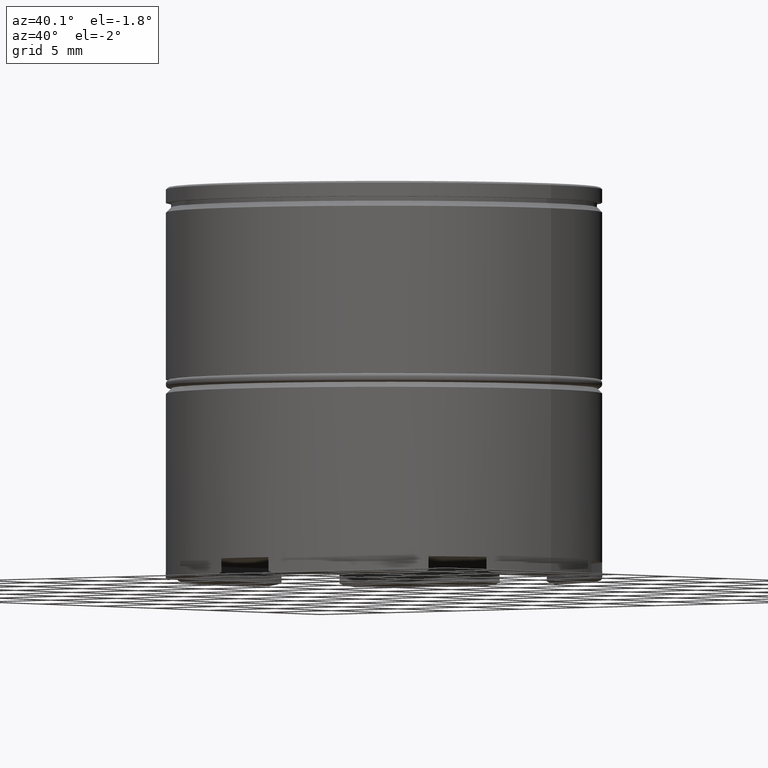
[diagram: clean part render]
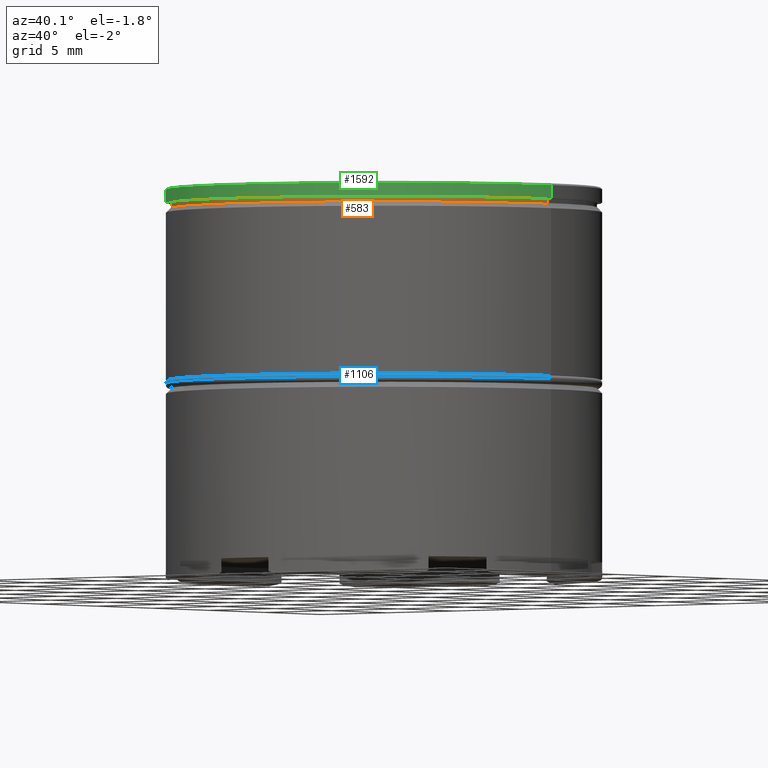
[diagram: same view with three faces highlighted in distinct colors, each labeled with its STEP entity id]
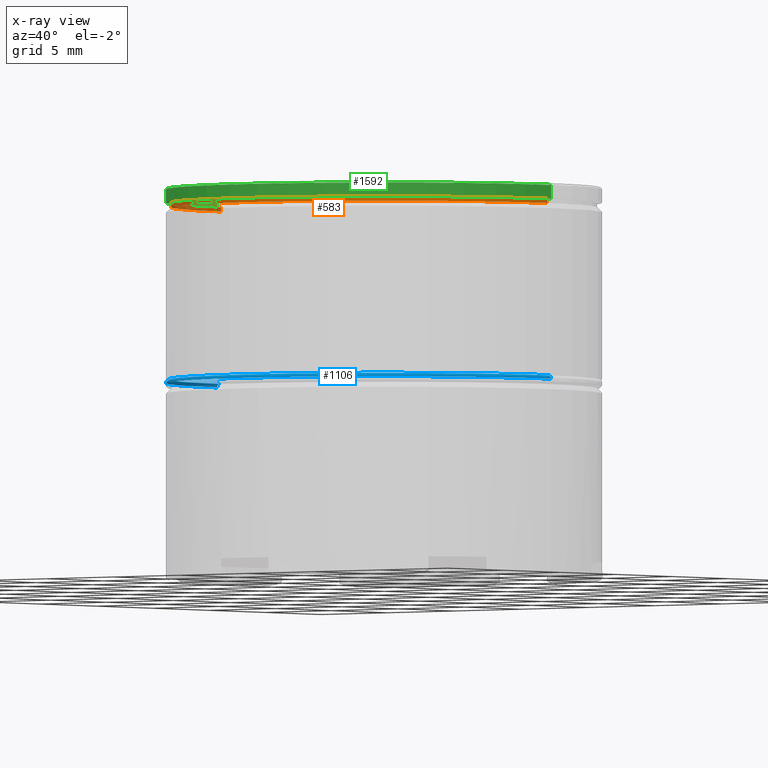
[diagram: x-ray of the same camera — body ghosted, the three highlighted faces saturated]
A machine part, auxiliary view with three faces highlighted in distinct colors.
The next image is the same camera in x-ray (body ghosted, the three faces saturated) — at least one of them is partly hidden behind the body in this view.
Their STEP definitions:

[orange] entity #583 — the highlighted cylindrical surface (partial cylindrical patch) has radius 12.2 mm, axis along (-0, -0, 1).
#79 = CARTESIAN_POINT ( 'NONE',  ( 0.000000000000000000, 0.000000000000000000, -0.8749999999999998890 ) ) ;
#101 = VERTEX_POINT ( 'NONE', #1105 ) ;
#126 = ORIENTED_EDGE ( 'NONE', *, *, #315, .T. ) ;
#315 = EDGE_CURVE ( 'NONE', #1454, #932, #673, .T. ) ;
#329 = AXIS2_PLACEMENT_3D ( 'NONE', #1341, #356, #1199 ) ;
#356 = DIRECTION ( 'NONE',  ( -0.000000000000000000, -0.000000000000000000, 1.000000000000000000 ) ) ;
#382 = CYLINDRICAL_SURFACE ( 'NONE', #768, 12.20000000000000107 ) ;
#389 = DIRECTION ( 'NONE',  ( -0.000000000000000000, -0.000000000000000000, 1.000000000000000000 ) ) ;
#490 = LINE ( 'NONE', #518, #1342 ) ;
#495 = LINE ( 'NONE', #977, #718 ) ;
#518 = CARTESIAN_POINT ( 'NONE',  ( 12.20000000000000107, 0.000000000000000000, 0.000000000000000000 ) ) ;
#560 = DIRECTION ( 'NONE',  ( 1.000000000000000000, 0.000000000000000000, 0.000000000000000000 ) ) ;
#583 = ADVANCED_FACE ( 'NONE', ( #937 ), #382, .T. ) ;
#612 = AXIS2_PLACEMENT_3D ( 'NONE', #79, #1073, #560 ) ;
#673 = CIRCLE ( 'NONE', #329, 12.20000000000000107 ) ;
#705 = EDGE_LOOP ( 'NONE', ( #958, #126, #735, #1591 ) ) ;
#718 = VECTOR ( 'NONE', #1486, 1000.000000000000000 ) ;
#735 = ORIENTED_EDGE ( 'NONE', *, *, #1158, .T. ) ;
#752 = CARTESIAN_POINT ( 'NONE',  ( -12.20000000000000107, 1.494069094959771056E-15, -0.8749999999999998890 ) ) ;
#768 = AXIS2_PLACEMENT_3D ( 'NONE', #1513, #389, #1382 ) ;
#863 = VERTEX_POINT ( 'NONE', #752 ) ;
#891 = DIRECTION ( 'NONE',  ( -0.000000000000000000, -0.000000000000000000, 1.000000000000000000 ) ) ;
#923 = CIRCLE ( 'NONE', #612, 12.20000000000000107 ) ;
#932 = VERTEX_POINT ( 'NONE', #1541 ) ;
#937 = FACE_OUTER_BOUND ( 'NONE', #705, .T. ) ;
#957 = EDGE_CURVE ( 'NONE', #863, #101, #923, .T. ) ;
#958 = ORIENTED_EDGE ( 'NONE', *, *, #1632, .F. ) ;
#960 = CARTESIAN_POINT ( 'NONE',  ( -12.20000000000000107, 1.494069094959771056E-15, -1.125000000000000222 ) ) ;
#977 = CARTESIAN_POINT ( 'NONE',  ( -12.20000000000000107, 1.494069094959771056E-15, 0.000000000000000000 ) ) ;
#1073 = DIRECTION ( 'NONE',  ( -0.000000000000000000, -0.000000000000000000, 1.000000000000000000 ) ) ;
#1105 = CARTESIAN_POINT ( 'NONE',  ( 12.20000000000000107, 0.000000000000000000, -0.8749999999999998890 ) ) ;
#1158 = EDGE_CURVE ( 'NONE', #932, #101, #490, .T. ) ;
#1199 = DIRECTION ( 'NONE',  ( 1.000000000000000000, 0.000000000000000000, 0.000000000000000000 ) ) ;
#1341 = CARTESIAN_POINT ( 'NONE',  ( 0.000000000000000000, 0.000000000000000000, -1.125000000000000222 ) ) ;
#1342 = VECTOR ( 'NONE', #891, 1000.000000000000000 ) ;
#1382 = DIRECTION ( 'NONE',  ( 1.000000000000000000, 0.000000000000000000, 0.000000000000000000 ) ) ;
#1454 = VERTEX_POINT ( 'NONE', #960 ) ;
#1486 = DIRECTION ( 'NONE',  ( -0.000000000000000000, -0.000000000000000000, 1.000000000000000000 ) ) ;
#1513 = CARTESIAN_POINT ( 'NONE',  ( 0.000000000000000000, 0.000000000000000000, 0.000000000000000000 ) ) ;
#1541 = CARTESIAN_POINT ( 'NONE',  ( 12.20000000000000107, 0.000000000000000000, -1.125000000000000222 ) ) ;
#1591 = ORIENTED_EDGE ( 'NONE', *, *, #957, .F. ) ;
#1632 = EDGE_CURVE ( 'NONE', #1454, #863, #495, .T. ) ;

[blue] entity #1106 — the highlighted toroidal blend (fillet) surface has major radius 12.3 mm and minor (blend) radius 0.2 mm.
#11 = CIRCLE ( 'NONE', #793, 12.50000000000000000 ) ;
#22 = CARTESIAN_POINT ( 'NONE',  ( -12.30000000000000071, 0.000000000000000000, -11.20000000000000107 ) ) ;
#73 = AXIS2_PLACEMENT_3D ( 'NONE', #22, #526, #156 ) ;
#88 = CARTESIAN_POINT ( 'NONE',  ( -12.50000000000000000, 1.530808498934191521E-15, -11.20000000000000107 ) ) ;
#142 = EDGE_CURVE ( 'NONE', #206, #1414, #11, .T. ) ;
#156 = DIRECTION ( 'NONE',  ( 0.000000000000000000, 0.000000000000000000, -1.000000000000000000 ) ) ;
#161 = ORIENTED_EDGE ( 'NONE', *, *, #183, .T. ) ;
#183 = EDGE_CURVE ( 'NONE', #216, #1414, #696, .T. ) ;
#206 = VERTEX_POINT ( 'NONE', #432 ) ;
#216 = VERTEX_POINT ( 'NONE', #1064 ) ;
#263 = DIRECTION ( 'NONE',  ( 0.000000000000000000, 0.000000000000000000, -1.000000000000000000 ) ) ;
#306 = DIRECTION ( 'NONE',  ( -1.000000000000000000, 0.000000000000000000, 0.000000000000000000 ) ) ;
#393 = FACE_OUTER_BOUND ( 'NONE', #964, .T. ) ;
#394 = DIRECTION ( 'NONE',  ( -1.000000000000000000, 0.000000000000000000, 0.000000000000000000 ) ) ;
#430 = DIRECTION ( 'NONE',  ( -1.000000000000000000, -1.224646799147353207E-16, 0.000000000000000000 ) ) ;
#432 = CARTESIAN_POINT ( 'NONE',  ( 12.50000000000000000, 0.000000000000000000, -11.20000000000000107 ) ) ;
#435 = CARTESIAN_POINT ( 'NONE',  ( 0.000000000000000000, 0.000000000000000000, -11.00000000000000000 ) ) ;
#516 = DIRECTION ( 'NONE',  ( -1.224646799147353207E-16, 1.000000000000000000, 0.000000000000000000 ) ) ;
#526 = DIRECTION ( 'NONE',  ( -0.000000000000000000, -1.000000000000000000, -0.000000000000000000 ) ) ;
#531 = ORIENTED_EDGE ( 'NONE', *, *, #1067, .F. ) ;
#619 = CARTESIAN_POINT ( 'NONE',  ( 0.000000000000000000, 0.000000000000000000, -11.20000000000000107 ) ) ;
#636 = AXIS2_PLACEMENT_3D ( 'NONE', #1381, #516, #430 ) ;
#691 = TOROIDAL_SURFACE ( 'NONE', #1532, 12.30000000000000071, 0.2000000000000000111 ) ;
#696 = CIRCLE ( 'NONE', #73, 0.2000000000000005107 ) ;
#759 = AXIS2_PLACEMENT_3D ( 'NONE', #435, #1432, #306 ) ;
#775 = ORIENTED_EDGE ( 'NONE', *, *, #142, .F. ) ;
#793 = AXIS2_PLACEMENT_3D ( 'NONE', #1376, #263, #394 ) ;
#829 = EDGE_CURVE ( 'NONE', #1527, #206, #1156, .T. ) ;
#883 = DIRECTION ( 'NONE',  ( -1.000000000000000000, 0.000000000000000000, 0.000000000000000000 ) ) ;
#964 = EDGE_LOOP ( 'NONE', ( #1617, #531, #161, #775 ) ) ;
#1064 = CARTESIAN_POINT ( 'NONE',  ( -12.30000000000000071, 0.000000000000000000, -11.00000000000000000 ) ) ;
#1067 = EDGE_CURVE ( 'NONE', #216, #1527, #1474, .T. ) ;
#1106 = ADVANCED_FACE ( 'NONE', ( #393 ), #691, .T. ) ;
#1156 = CIRCLE ( 'NONE', #636, 0.2000000000000005107 ) ;
#1250 = DIRECTION ( 'NONE',  ( 0.000000000000000000, 0.000000000000000000, -1.000000000000000000 ) ) ;
#1376 = CARTESIAN_POINT ( 'NONE',  ( 0.000000000000000000, 0.000000000000000000, -11.20000000000000107 ) ) ;
#1381 = CARTESIAN_POINT ( 'NONE',  ( 12.30000000000000071, 1.506315562951244413E-15, -11.20000000000000107 ) ) ;
#1414 = VERTEX_POINT ( 'NONE', #88 ) ;
#1432 = DIRECTION ( 'NONE',  ( -0.000000000000000000, -0.000000000000000000, 1.000000000000000000 ) ) ;
#1474 = CIRCLE ( 'NONE', #759, 12.30000000000000071 ) ;
#1527 = VERTEX_POINT ( 'NONE', #1572 ) ;
#1532 = AXIS2_PLACEMENT_3D ( 'NONE', #619, #1250, #883 ) ;
#1572 = CARTESIAN_POINT ( 'NONE',  ( 12.30000000000000071, 1.518562030942717967E-15, -11.00000000000000000 ) ) ;
#1617 = ORIENTED_EDGE ( 'NONE', *, *, #829, .F. ) ;

[green] entity #1592 — the highlighted cylindrical surface (partial cylindrical patch) has radius 12.5 mm, axis along (-0, -0, 1).
#17 = DIRECTION ( 'NONE',  ( -0.000000000000000000, -0.000000000000000000, 1.000000000000000000 ) ) ;
#97 = EDGE_CURVE ( 'NONE', #1424, #1302, #1582, .T. ) ;
#224 = VECTOR ( 'NONE', #955, 1000.000000000000000 ) ;
#249 = AXIS2_PLACEMENT_3D ( 'NONE', #1221, #345, #478 ) ;
#278 = DIRECTION ( 'NONE',  ( -0.000000000000000000, -0.000000000000000000, 1.000000000000000000 ) ) ;
#305 = EDGE_CURVE ( 'NONE', #1394, #1349, #741, .T. ) ;
#322 = CARTESIAN_POINT ( 'NONE',  ( -12.50000000000000000, 1.530808498934191521E-15, -0.8749999999999998890 ) ) ;
#341 = ORIENTED_EDGE ( 'NONE', *, *, #1463, .T. ) ;
#345 = DIRECTION ( 'NONE',  ( 0.000000000000000000, 0.000000000000000000, -1.000000000000000000 ) ) ;
#352 = DIRECTION ( 'NONE',  ( -0.000000000000000000, -0.000000000000000000, 1.000000000000000000 ) ) ;
#467 = CARTESIAN_POINT ( 'NONE',  ( 12.50000000000000000, 0.000000000000000000, 0.000000000000000000 ) ) ;
#478 = DIRECTION ( 'NONE',  ( 1.000000000000000000, 0.000000000000000000, 0.000000000000000000 ) ) ;
#504 = ORIENTED_EDGE ( 'NONE', *, *, #97, .T. ) ;
#521 = FACE_OUTER_BOUND ( 'NONE', #1203, .T. ) ;
#731 = ORIENTED_EDGE ( 'NONE', *, *, #305, .T. ) ;
#739 = EDGE_CURVE ( 'NONE', #1424, #1349, #1388, .T. ) ;
#741 = CIRCLE ( 'NONE', #249, 12.50000000000000000 ) ;
#838 = CARTESIAN_POINT ( 'NONE',  ( 0.000000000000000000, 0.000000000000000000, -0.8749999999999998890 ) ) ;
#887 = ORIENTED_EDGE ( 'NONE', *, *, #739, .F. ) ;
#955 = DIRECTION ( 'NONE',  ( -0.000000000000000000, -0.000000000000000000, 1.000000000000000000 ) ) ;
#999 = VECTOR ( 'NONE', #278, 1000.000000000000000 ) ;
#1002 = AXIS2_PLACEMENT_3D ( 'NONE', #838, #352, #1350 ) ;
#1166 = CARTESIAN_POINT ( 'NONE',  ( -12.50000000000000000, 1.530808498934191521E-15, -0.1000000000000045991 ) ) ;
#1203 = EDGE_LOOP ( 'NONE', ( #887, #504, #341, #731 ) ) ;
#1212 = LINE ( 'NONE', #467, #224 ) ;
#1221 = CARTESIAN_POINT ( 'NONE',  ( 0.000000000000000000, 0.000000000000000000, -0.1000000000000045991 ) ) ;
#1246 = DIRECTION ( 'NONE',  ( 1.000000000000000000, 0.000000000000000000, 0.000000000000000000 ) ) ;
#1289 = AXIS2_PLACEMENT_3D ( 'NONE', #1371, #17, #1246 ) ;
#1302 = VERTEX_POINT ( 'NONE', #1441 ) ;
#1349 = VERTEX_POINT ( 'NONE', #1166 ) ;
#1350 = DIRECTION ( 'NONE',  ( 1.000000000000000000, 0.000000000000000000, 0.000000000000000000 ) ) ;
#1371 = CARTESIAN_POINT ( 'NONE',  ( 0.000000000000000000, 0.000000000000000000, 0.000000000000000000 ) ) ;
#1388 = LINE ( 'NONE', #1420, #999 ) ;
#1394 = VERTEX_POINT ( 'NONE', #1407 ) ;
#1407 = CARTESIAN_POINT ( 'NONE',  ( 12.50000000000000000, 0.000000000000000000, -0.1000000000000045991 ) ) ;
#1420 = CARTESIAN_POINT ( 'NONE',  ( -12.50000000000000000, 1.530808498934191521E-15, 0.000000000000000000 ) ) ;
#1424 = VERTEX_POINT ( 'NONE', #322 ) ;
#1441 = CARTESIAN_POINT ( 'NONE',  ( 12.50000000000000000, 0.000000000000000000, -0.8749999999999998890 ) ) ;
#1463 = EDGE_CURVE ( 'NONE', #1302, #1394, #1212, .T. ) ;
#1582 = CIRCLE ( 'NONE', #1002, 12.50000000000000000 ) ;
#1592 = ADVANCED_FACE ( 'NONE', ( #521 ), #1611, .T. ) ;
#1611 = CYLINDRICAL_SURFACE ( 'NONE', #1289, 12.50000000000000000 ) ;